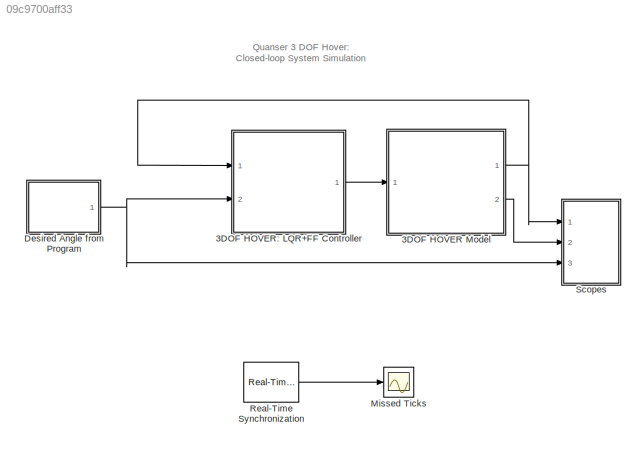
MODEL slx_09c9700aff33
KIND model
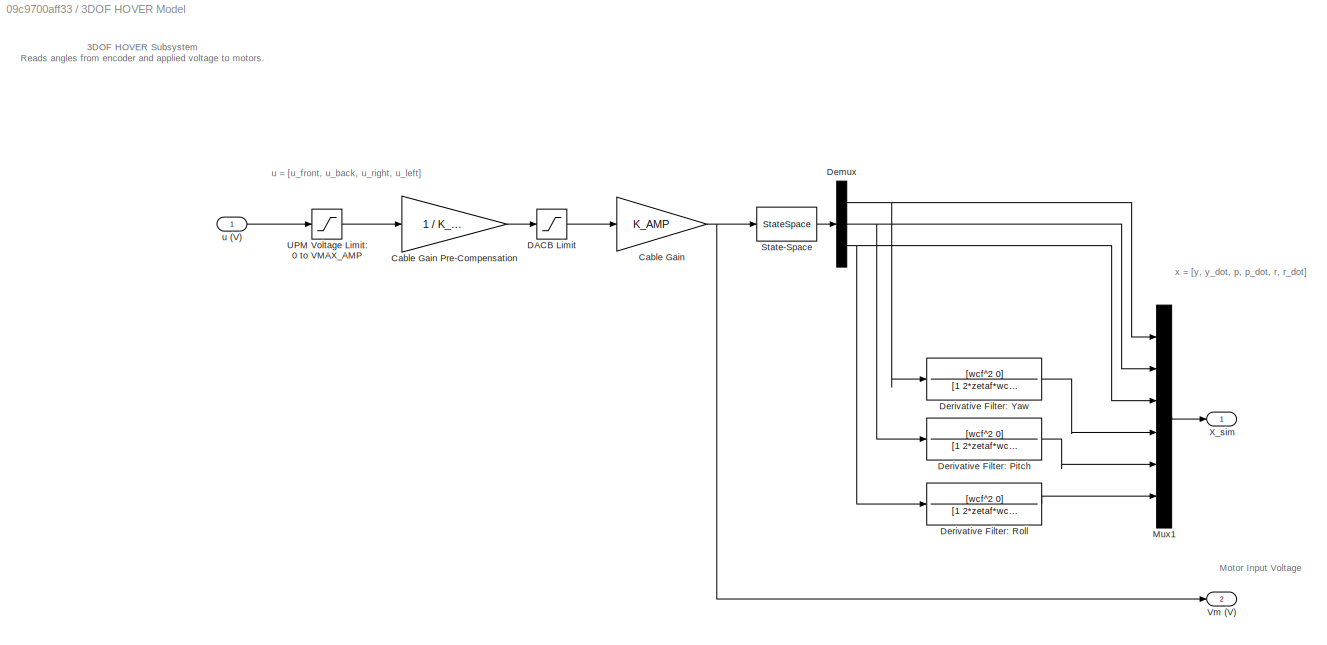
BLOCK [SubSystem] 3DOF HOVER Model
  FunctionWithSeparateData = off
  MaskHideContents = off
  MinAlgLoopOccurrences = off
  Opaque = off
  Ports = [1, 2]
  PropExecContextOutsideSubsystem = off
  RTWSystemCode = Auto
  RequestExecContextInheritance = off
BLOCK [Gain] 3DOF HOVER Model/Cable Gain
  Gain = K_AMP
  Multiplication = Matrix(K*u)
BLOCK [Gain] 3DOF HOVER Model/Cable Gain Pre-Compensation
  Gain = 1 / K_AMP
  Multiplication = Matrix(K*u)
BLOCK [Saturate] 3DOF HOVER Model/DACB Limit
  InputPortMap = u0
  LowerLimit = -VMAX_DAC
  Ports = [1, 1]
  UpperLimit = VMAX_DAC
BLOCK [Demux] 3DOF HOVER Model/Demux
  DisplayOption = bar
  Outputs = 3
  Ports = [1, 3]
BLOCK [TransferFcn] 3DOF HOVER Model/Derivative Filter: Pitch
  Denominator = [1 2*zetaf*wcf wcf^2]
  Numerator = [wcf^2 0]
BLOCK [TransferFcn] 3DOF HOVER Model/Derivative Filter: Roll
  Denominator = [1 2*zetaf*wcf wcf^2]
  Numerator = [wcf^2 0]
BLOCK [TransferFcn] 3DOF HOVER Model/Derivative Filter: Yaw
  Denominator = [1 2*zetaf*wcf wcf^2]
  Numerator = [wcf^2 0]
BLOCK [Mux] 3DOF HOVER Model/Mux1
  DisplayOption = bar
  Inputs = 6
  Ports = [6, 1]
BLOCK [StateSpace] 3DOF HOVER Model/State-Space
  A = A
  B = B
  C = C
  D = D
BLOCK [Saturate] 3DOF HOVER Model/UPM Voltage Limit: 0 to VMAX_AMP
  InputPortMap = u0
  LowerLimit = 0
  Ports = [1, 1]
  UpperLimit = VMAX_AMP
BLOCK [Outport] 3DOF HOVER Model/Vm (V)
  IconDisplay = Port number
  Port = 2
BLOCK [Outport] 3DOF HOVER Model/X_sim
  IconDisplay = Port number
BLOCK [Inport] 3DOF HOVER Model/u (V)
  IconDisplay = Port number
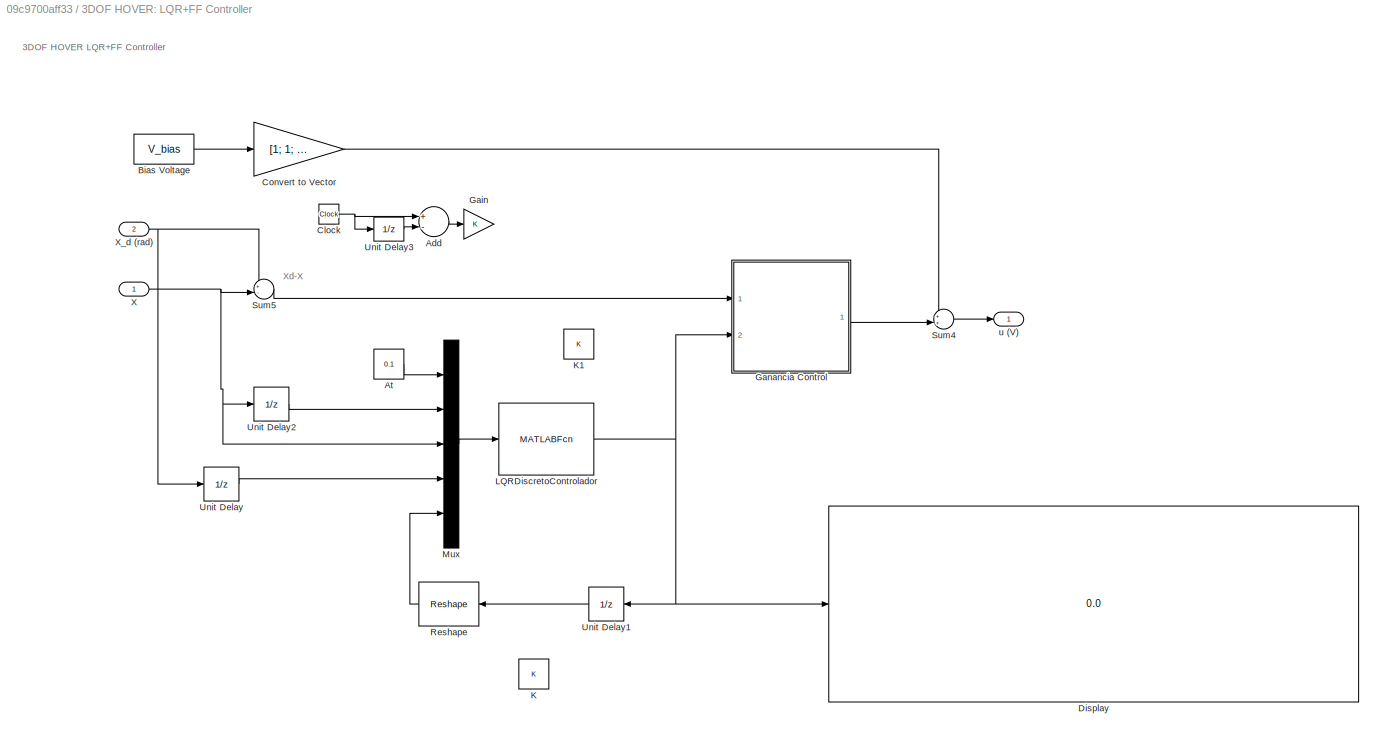
BLOCK [SubSystem] 3DOF HOVER: LQR+FF Controller
  FunctionWithSeparateData = off
  MaskHideContents = off
  MinAlgLoopOccurrences = off
  Opaque = off
  Ports = [2, 1]
  PropExecContextOutsideSubsystem = off
  RTWSystemCode = Auto
  RequestExecContextInheritance = off
BLOCK [Sum] 3DOF HOVER: LQR+FF Controller/Add
  InputSameDT = off
  Inputs = +-
  OutDataTypeStr = Inherit: Inherit via internal rule
  Ports = [2, 1]
  SaturateOnIntegerOverflow = off
BLOCK [Constant] 3DOF HOVER: LQR+FF Controller/At
  Value = 0.1
BLOCK [Constant] 3DOF HOVER: LQR+FF Controller/Bias Voltage
  Value = V_bias
BLOCK [Clock] 3DOF HOVER: LQR+FF Controller/Clock
BLOCK [Gain] 3DOF HOVER: LQR+FF Controller/Convert to Vector
  Gain = [1; 1; 1; 1]*0
  Multiplication = Matrix(K*u)
  OutDataTypeStr = Inherit: Inherit via internal rule
  ParamDataTypeStr = Inherit: Inherit via internal rule
  SaturateOnIntegerOverflow = off
BLOCK [Display] 3DOF HOVER: LQR+FF Controller/Display
  Decimation = 1
  Lockdown = off
  Ports = [1]
BLOCK [Gain] 3DOF HOVER: LQR+FF Controller/Gain
  OutDataTypeStr = Inherit: Inherit via internal rule
  ParamDataTypeStr = Inherit: Inherit via internal rule
  SaturateOnIntegerOverflow = off
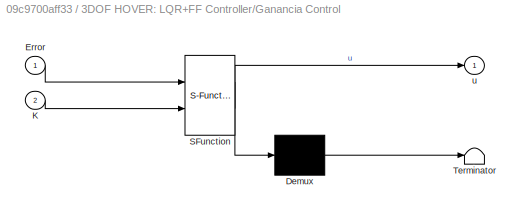
BLOCK [SubSystem] 3DOF HOVER: LQR+FF Controller/Ganancia Control
  ErrorFcn = Stateflow.Translate.translate
  FunctionWithSeparateData = off
  MaskHideContents = off
  MinAlgLoopOccurrences = off
  Opaque = off
  PermitHierarchicalResolution = ExplicitOnly
  Ports = [2, 1]
  PropExecContextOutsideSubsystem = off
  RTWSystemCode = Auto
  RequestExecContextInheritance = off
  SFBlockType = MATLAB Function
  TreatAsAtomicUnit = on
BLOCK [Demux] 3DOF HOVER: LQR+FF Controller/Ganancia Control/ Demux 
  Outputs = 1
  Ports = [1, 1]
BLOCK [S-Function] 3DOF HOVER: LQR+FF Controller/Ganancia Control/ SFunction 
  EnableBusSupport = on
  FunctionName = sf_sfun
  PortCounts = [2 2]
  Ports = [2, 2]
  Tag = Stateflow S-Function s_hover_lqrV2 1
BLOCK [Terminator] 3DOF HOVER: LQR+FF Controller/Ganancia Control/ Terminator 
BLOCK [Inport] 3DOF HOVER: LQR+FF Controller/Ganancia Control/Error
  IconDisplay = Port number
BLOCK [Inport] 3DOF HOVER: LQR+FF Controller/Ganancia Control/K
  IconDisplay = Port number
  Port = 2
BLOCK [Outport] 3DOF HOVER: LQR+FF Controller/Ganancia Control/u
  IconDisplay = Port number
BLOCK [Constant] 3DOF HOVER: LQR+FF Controller/K
  Value = K
BLOCK [Constant] 3DOF HOVER: LQR+FF Controller/K1
  Value = K
BLOCK [MATLABFcn] 3DOF HOVER: LQR+FF Controller/LQRDiscretoControlador
  MATLABFcn = LQRDiscretoFUNC( u(1),u(2:7),u(8:13),u(14:19),u(20:43) )
  Output1D = off
  OutputDimensions = [4,6]
  Ports = [1, 1]
BLOCK [Mux] 3DOF HOVER: LQR+FF Controller/Mux
  DisplayOption = bar
  Inputs = 5
  Ports = [5, 1]
BLOCK [Reshape] 3DOF HOVER: LQR+FF Controller/Reshape
  OutputDimensionality = Customize
  OutputDimensions = [4*6,1]
  Ports = [1, 1]
BLOCK [Sum] 3DOF HOVER: LQR+FF Controller/Sum4
  IconShape = round
  InputSameDT = off
  Inputs = ++|
  OutDataTypeStr = Inherit: Inherit via internal rule
  Ports = [2, 1]
  SaturateOnIntegerOverflow = off
BLOCK [Sum] 3DOF HOVER: LQR+FF Controller/Sum5
  IconShape = round
  InputSameDT = off
  Inputs = +-|
  OutDataTypeStr = Inherit: Inherit via internal rule
  Ports = [2, 1]
  SaturateOnIntegerOverflow = off
BLOCK [UnitDelay] 3DOF HOVER: LQR+FF Controller/Unit Delay
  InitialCondition = [0;0;0;0;0;0]
  InputProcessing = Elements as channels (sample based)
  SampleTime = -1
BLOCK [UnitDelay] 3DOF HOVER: LQR+FF Controller/Unit Delay1
  InitialCondition = K
  InputProcessing = Elements as channels (sample based)
  SampleTime = -1
BLOCK [UnitDelay] 3DOF HOVER: LQR+FF Controller/Unit Delay2
  InitialCondition = [0;0;0;0;0;0]
  InputProcessing = Elements as channels (sample based)
  SampleTime = -1
BLOCK [UnitDelay] 3DOF HOVER: LQR+FF Controller/Unit Delay3
  InputProcessing = Elements as channels (sample based)
  SampleTime = -1
BLOCK [Inport] 3DOF HOVER: LQR+FF Controller/X
  IconDisplay = Port number
BLOCK [Inport] 3DOF HOVER: LQR+FF Controller/X_d (rad)
  IconDisplay = Port number
  Port = 2
BLOCK [Outport] 3DOF HOVER: LQR+FF Controller/u (V)
  IconDisplay = Port number
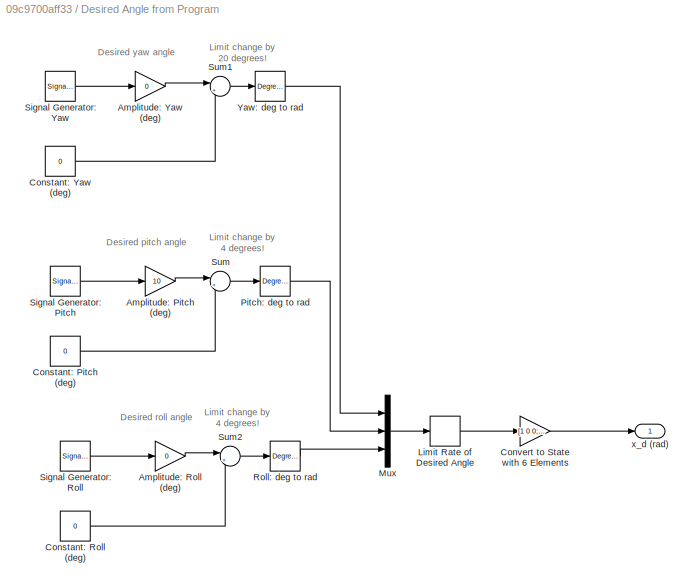
BLOCK [SubSystem] Desired Angle from Program
  FunctionWithSeparateData = off
  MaskHideContents = off
  MinAlgLoopOccurrences = off
  Opaque = off
  Ports = [0, 1]
  PropExecContextOutsideSubsystem = off
  RTWSystemCode = Auto
  RequestExecContextInheritance = off
BLOCK [Gain] Desired Angle from Program/Amplitude: Pitch (deg)
  Gain = 10
  OutDataTypeStr = Inherit: Inherit via internal rule
  ParamDataTypeStr = Inherit: Inherit via internal rule
  SaturateOnIntegerOverflow = off
BLOCK [Gain] Desired Angle from Program/Amplitude: Roll (deg)
  Gain = 0
  OutDataTypeStr = Inherit: Inherit via internal rule
  ParamDataTypeStr = Inherit: Inherit via internal rule
  SaturateOnIntegerOverflow = off
BLOCK [Gain] Desired Angle from Program/Amplitude: Yaw (deg)
  Gain = 0
  OutDataTypeStr = Inherit: Inherit via internal rule
  ParamDataTypeStr = Inherit: Inherit via internal rule
  SaturateOnIntegerOverflow = off
BLOCK [Constant] Desired Angle from Program/Constant: Pitch (deg)
  Value = 0
BLOCK [Constant] Desired Angle from Program/Constant: Roll (deg)
  Value = 0
BLOCK [Constant] Desired Angle from Program/Constant: Yaw (deg)
  Value = 0
BLOCK [Gain] Desired Angle from Program/Convert to State with 6 Elements
  Gain = [1 0 0; 0 1 0; 0 0 1; 0 0 0; 0 0 0; 0 0 0];
  Multiplication = Matrix(K*u)
  OutDataTypeStr = Inherit: Inherit via internal rule
  ParamDataTypeStr = Inherit: Inherit via internal rule
  SaturateOnIntegerOverflow = off
BLOCK [RateLimiter] Desired Angle from Program/Limit Rate of Desired Angle
  FallingSlewLimit = -CMD_RATE_LIMIT
  RisingSlewLimit = CMD_RATE_LIMIT
BLOCK [Mux] Desired Angle from Program/Mux
  DisplayOption = bar
  Inputs = 3
  Ports = [3, 1]
BLOCK [Reference] Desired Angle from Program/Pitch: deg to rad  REF=simulink_extras/Transformations/Degrees to
Radians
  Ports = [1, 1]
  SourceBlock = simulink_extras/Transformations/Degrees to\nRadians
  SourceType = DegreesToRadians
BLOCK [Reference] Desired Angle from Program/Roll: deg to rad  REF=simulink_extras/Transformations/Degrees to
Radians
  Ports = [1, 1]
  SourceBlock = simulink_extras/Transformations/Degrees to\nRadians
  SourceType = DegreesToRadians
BLOCK [SignalGenerator] Desired Angle from Program/Signal Generator: Pitch
  Frequency = 0.1
  Ports = [0, 1]
  WaveForm = square
BLOCK [SignalGenerator] Desired Angle from Program/Signal Generator: Roll
  Frequency = 0.08
  Ports = [0, 1]
  WaveForm = square
BLOCK [SignalGenerator] Desired Angle from Program/Signal Generator: Yaw
  Frequency = 0.4
  Ports = [0, 1]
  WaveForm = square
BLOCK [Sum] Desired Angle from Program/Sum
  IconShape = round
  InputSameDT = off
  Inputs = |++
  OutDataTypeStr = Inherit: Inherit via internal rule
  Ports = [2, 1]
  SaturateOnIntegerOverflow = off
BLOCK [Sum] Desired Angle from Program/Sum1
  IconShape = round
  InputSameDT = off
  Inputs = |++
  OutDataTypeStr = Inherit: Inherit via internal rule
  Ports = [2, 1]
  SaturateOnIntegerOverflow = off
BLOCK [Sum] Desired Angle from Program/Sum2
  IconShape = round
  InputSameDT = off
  Inputs = |++
  OutDataTypeStr = Inherit: Inherit via internal rule
  Ports = [2, 1]
  SaturateOnIntegerOverflow = off
BLOCK [Reference] Desired Angle from Program/Yaw: deg to rad  REF=simulink_extras/Transformations/Degrees to
Radians
  Ports = [1, 1]
  SourceBlock = simulink_extras/Transformations/Degrees to\nRadians
  SourceType = DegreesToRadians
BLOCK [Outport] Desired Angle from Program/x_d (rad)
  IconDisplay = Port number
BLOCK [Scope] Missed Ticks
  Floating = off
  LimitDataPoints = off
  NumInputPorts = 1
  Ports = [1]
  SampleTime = 0
  SaveName = ScopeData3
  ShowLegends = off
  TickLabels = on
  TimeRange = 20
  YMax = 30
  YMin = 0
BLOCK [Reference] Real-Time Synchronization  REF=rtwinlib/Real-Time
Synchronization
  MaxMissedTicks = 100000000000000000000000
  Ports = [0, 1]
  SampleTime = 0.001
  ShowMissedTicks = on
  SourceBlock = rtwinlib/Real-Time\nSynchronization
  SourceType = RTWin Real-Time Synchronization
  YieldWhenWaiting = on
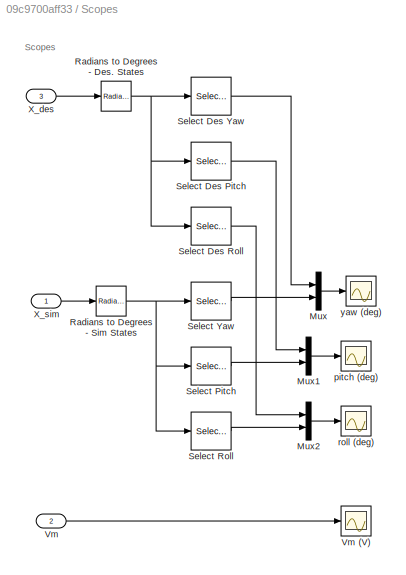
BLOCK [SubSystem] Scopes
  FunctionWithSeparateData = off
  MaskHideContents = off
  MinAlgLoopOccurrences = off
  Opaque = off
  Ports = [3]
  PropExecContextOutsideSubsystem = off
  RTWSystemCode = Auto
  RequestExecContextInheritance = off
BLOCK [Mux] Scopes/Mux
  DisplayOption = bar
  Inputs = 2
  Ports = [2, 1]
BLOCK [Mux] Scopes/Mux1
  DisplayOption = bar
  Inputs = 2
  Ports = [2, 1]
BLOCK [Mux] Scopes/Mux2
  DisplayOption = bar
  Inputs = 2
  Ports = [2, 1]
BLOCK [Reference] Scopes/Radians to Degrees - Des. States  REF=simulink_extras/Transformations/Radians
to Degrees
  Ports = [1, 1]
  SourceBlock = simulink_extras/Transformations/Radians\nto Degrees
  SourceType = RadiansToDegrees
BLOCK [Reference] Scopes/Radians to Degrees - Sim States  REF=simulink_extras/Transformations/Radians
to Degrees
  Ports = [1, 1]
  SourceBlock = simulink_extras/Transformations/Radians\nto Degrees
  SourceType = RadiansToDegrees
BLOCK [Selector] Scopes/Select Des Pitch
  IndexOptions = Index vector (dialog)
  Indices = 2
  InputPortWidth = 6
  OutputSizes = 1
  Ports = [1, 1]
BLOCK [Selector] Scopes/Select Des Roll
  IndexOptions = Index vector (dialog)
  Indices = 3
  InputPortWidth = 6
  OutputSizes = 1
  Ports = [1, 1]
BLOCK [Selector] Scopes/Select Des Yaw
  IndexOptions = Index vector (dialog)
  Indices = 1
  InputPortWidth = 6
  OutputSizes = 1
  Ports = [1, 1]
BLOCK [Selector] Scopes/Select Pitch
  IndexOptions = Index vector (dialog)
  Indices = 2
  InputPortWidth = 6
  OutputSizes = 1
  Ports = [1, 1]
BLOCK [Selector] Scopes/Select Roll
  IndexOptions = Index vector (dialog)
  Indices = 3
  InputPortWidth = 6
  OutputSizes = 1
  Ports = [1, 1]
BLOCK [Selector] Scopes/Select Yaw
  IndexOptions = Index vector (dialog)
  Indices = 1
  InputPortWidth = 6
  OutputSizes = 1
  Ports = [1, 1]
BLOCK [Inport] Scopes/Vm
  IconDisplay = Port number
  Port = 2
BLOCK [Scope] Scopes/Vm (V)
  Floating = off
  LimitDataPoints = off
  NumInputPorts = 1
  Ports = [1]
  SampleTime = 0
  SaveName = ScopeData4
  ShowLegends = off
  TickLabels = on
  TimeRange = 20
  YMax = 15
  YMin = -15
BLOCK [Inport] Scopes/X_des
  IconDisplay = Port number
  Port = 3
BLOCK [Inport] Scopes/X_sim
  IconDisplay = Port number
BLOCK [Scope] Scopes/pitch (deg)
  Floating = off
  LimitDataPoints = off
  NumInputPorts = 1
  Ports = [1]
  SampleTime = 0
  SaveName = ScopeData1
  ShowLegends = off
  TickLabels = on
  TimeRange = 20
  YMax = 11
  YMin = -11
BLOCK [Scope] Scopes/roll  (deg)
  Floating = off
  LimitDataPoints = off
  NumInputPorts = 1
  Ports = [1]
  SampleTime = 0
  SaveName = ScopeData2
  ShowLegends = off
  TickLabels = on
  TimeRange = 20
BLOCK [Scope] Scopes/yaw (deg)
  Floating = off
  LimitDataPoints = off
  NumInputPorts = 1
  Ports = [1]
  SampleTime = 0
  ShowLegends = off
  TickLabels = on
  TimeRange = 20
  YMax = 0.1
  YMin = -0.9
ANNOTATION (root): Quanser 3 DOF Hover: Closed-loop System Simulation
ANNOTATION 3DOF HOVER Model: 3DOF HOVER Subsystem Reads angles from encoder and applied voltage to motors.
ANNOTATION 3DOF HOVER Model: Motor Input Voltage
ANNOTATION 3DOF HOVER Model: u = [u_front, u_back, u_right, u_left]
ANNOTATION 3DOF HOVER Model: x = [y, y_dot, p, p_dot, r, r_dot]
ANNOTATION 3DOF HOVER: LQR+FF Controller: 3DOF HOVER LQR+FF Controller
ANNOTATION 3DOF HOVER: LQR+FF Controller: Xd-X
ANNOTATION Desired Angle from Program: Desired pitch angle
ANNOTATION Desired Angle from Program: Desired roll angle
ANNOTATION Desired Angle from Program: Desired yaw angle
ANNOTATION Desired Angle from Program: Limit change by 20 degrees!
ANNOTATION Desired Angle from Program: Limit change by 4 degrees!
ANNOTATION Scopes: Scopes
LINE 3DOF HOVER Model/Cable Gain Pre-Compensation:1 -> 3DOF HOVER Model/DACB Limit:1
NET 3DOF HOVER Model/Cable Gain:1 -> 3DOF HOVER Model/State-Space:1, 3DOF HOVER Model/Vm (V):1
LINE 3DOF HOVER Model/DACB Limit:1 -> 3DOF HOVER Model/Cable Gain:1
NET 3DOF HOVER Model/Demux:1 -> 3DOF HOVER Model/Derivative Filter: Yaw:1, 3DOF HOVER Model/Mux1:1
NET 3DOF HOVER Model/Demux:2 -> 3DOF HOVER Model/Derivative Filter: Pitch:1, 3DOF HOVER Model/Mux1:2
NET 3DOF HOVER Model/Demux:3 -> 3DOF HOVER Model/Derivative Filter: Roll:1, 3DOF HOVER Model/Mux1:3
LINE 3DOF HOVER Model/Derivative Filter: Pitch:1 -> 3DOF HOVER Model/Mux1:5
LINE 3DOF HOVER Model/Derivative Filter: Roll:1 -> 3DOF HOVER Model/Mux1:6
LINE 3DOF HOVER Model/Derivative Filter: Yaw:1 -> 3DOF HOVER Model/Mux1:4
LINE 3DOF HOVER Model/Mux1:1 -> 3DOF HOVER Model/X_sim:1
LINE 3DOF HOVER Model/State-Space:1 -> 3DOF HOVER Model/Demux:1
LINE 3DOF HOVER Model/UPM Voltage Limit: 0 to VMAX_AMP:1 -> 3DOF HOVER Model/Cable Gain Pre-Compensation:1
LINE 3DOF HOVER Model/u (V):1 -> 3DOF HOVER Model/UPM Voltage Limit: 0 to VMAX_AMP:1
NET 3DOF HOVER Model:1 -> 3DOF HOVER: LQR+FF Controller:1, Scopes:1
LINE 3DOF HOVER Model:2 -> Scopes:2
LINE 3DOF HOVER: LQR+FF Controller/Add:1 -> 3DOF HOVER: LQR+FF Controller/Gain:1
LINE 3DOF HOVER: LQR+FF Controller/At:1 -> 3DOF HOVER: LQR+FF Controller/Mux:1
LINE 3DOF HOVER: LQR+FF Controller/Bias Voltage:1 -> 3DOF HOVER: LQR+FF Controller/Convert to Vector:1
NET 3DOF HOVER: LQR+FF Controller/Clock:1 -> 3DOF HOVER: LQR+FF Controller/Add:1, 3DOF HOVER: LQR+FF Controller/Unit Delay3:1
LINE 3DOF HOVER: LQR+FF Controller/Convert to Vector:1 -> 3DOF HOVER: LQR+FF Controller/Sum4:1
LINE 3DOF HOVER: LQR+FF Controller/Ganancia Control:1 -> 3DOF HOVER: LQR+FF Controller/Sum4:2
NET 3DOF HOVER: LQR+FF Controller/LQRDiscretoControlador:1 -> 3DOF HOVER: LQR+FF Controller/Display:1, 3DOF HOVER: LQR+FF Controller/Ganancia Control:2, 3DOF HOVER: LQR+FF Controller/Unit Delay1:1
LINE 3DOF HOVER: LQR+FF Controller/Mux:1 -> 3DOF HOVER: LQR+FF Controller/LQRDiscretoControlador:1
LINE 3DOF HOVER: LQR+FF Controller/Reshape:1 -> 3DOF HOVER: LQR+FF Controller/Mux:5
LINE 3DOF HOVER: LQR+FF Controller/Sum4:1 -> 3DOF HOVER: LQR+FF Controller/u (V):1
LINE 3DOF HOVER: LQR+FF Controller/Sum5:1 -> 3DOF HOVER: LQR+FF Controller/Ganancia Control:1
LINE 3DOF HOVER: LQR+FF Controller/Unit Delay1:1 -> 3DOF HOVER: LQR+FF Controller/Reshape:1
LINE 3DOF HOVER: LQR+FF Controller/Unit Delay2:1 -> 3DOF HOVER: LQR+FF Controller/Mux:2
LINE 3DOF HOVER: LQR+FF Controller/Unit Delay3:1 -> 3DOF HOVER: LQR+FF Controller/Add:2
LINE 3DOF HOVER: LQR+FF Controller/Unit Delay:1 -> 3DOF HOVER: LQR+FF Controller/Mux:4
NET 3DOF HOVER: LQR+FF Controller/X:1 -> 3DOF HOVER: LQR+FF Controller/Mux:3, 3DOF HOVER: LQR+FF Controller/Sum5:2, 3DOF HOVER: LQR+FF Controller/Unit Delay2:1
NET 3DOF HOVER: LQR+FF Controller/X_d (rad):1 -> 3DOF HOVER: LQR+FF Controller/Sum5:1, 3DOF HOVER: LQR+FF Controller/Unit Delay:1
LINE 3DOF HOVER: LQR+FF Controller:1 -> 3DOF HOVER Model:1
LINE Desired Angle from Program/Amplitude: Pitch (deg):1 -> Desired Angle from Program/Sum:1
LINE Desired Angle from Program/Amplitude: Roll (deg):1 -> Desired Angle from Program/Sum2:1
LINE Desired Angle from Program/Amplitude: Yaw (deg):1 -> Desired Angle from Program/Sum1:1
LINE Desired Angle from Program/Constant: Pitch (deg):1 -> Desired Angle from Program/Sum:2
LINE Desired Angle from Program/Constant: Roll (deg):1 -> Desired Angle from Program/Sum2:2
LINE Desired Angle from Program/Constant: Yaw (deg):1 -> Desired Angle from Program/Sum1:2
LINE Desired Angle from Program/Convert to State with 6 Elements:1 -> Desired Angle from Program/x_d (rad):1
LINE Desired Angle from Program/Limit Rate of Desired Angle:1 -> Desired Angle from Program/Convert to State with 6 Elements:1
LINE Desired Angle from Program/Mux:1 -> Desired Angle from Program/Limit Rate of Desired Angle:1
LINE Desired Angle from Program/Pitch: deg to rad:1 -> Desired Angle from Program/Mux:2
LINE Desired Angle from Program/Roll: deg to rad:1 -> Desired Angle from Program/Mux:3
LINE Desired Angle from Program/Signal Generator: Pitch:1 -> Desired Angle from Program/Amplitude: Pitch (deg):1
LINE Desired Angle from Program/Signal Generator: Roll:1 -> Desired Angle from Program/Amplitude: Roll (deg):1
LINE Desired Angle from Program/Signal Generator: Yaw:1 -> Desired Angle from Program/Amplitude: Yaw (deg):1
LINE Desired Angle from Program/Sum1:1 -> Desired Angle from Program/Yaw: deg to rad:1
LINE Desired Angle from Program/Sum2:1 -> Desired Angle from Program/Roll: deg to rad:1
LINE Desired Angle from Program/Sum:1 -> Desired Angle from Program/Pitch: deg to rad:1
LINE Desired Angle from Program/Yaw: deg to rad:1 -> Desired Angle from Program/Mux:1
NET Desired Angle from Program:1 -> 3DOF HOVER: LQR+FF Controller:2, Scopes:3
LINE Real-Time Synchronization:1 -> Missed Ticks:1
LINE Scopes/Mux1:1 -> Scopes/pitch (deg):1
LINE Scopes/Mux2:1 -> Scopes/roll  (deg):1
LINE Scopes/Mux:1 -> Scopes/yaw (deg):1
NET Scopes/Radians to Degrees - Des. States:1 -> Scopes/Select Des Pitch:1, Scopes/Select Des Roll:1, Scopes/Select Des Yaw:1
NET Scopes/Radians to Degrees - Sim States:1 -> Scopes/Select Pitch:1, Scopes/Select Roll:1, Scopes/Select Yaw:1
LINE Scopes/Select Des Pitch:1 -> Scopes/Mux1:1
LINE Scopes/Select Des Roll:1 -> Scopes/Mux2:1
LINE Scopes/Select Des Yaw:1 -> Scopes/Mux:1
LINE Scopes/Select Pitch:1 -> Scopes/Mux1:2
LINE Scopes/Select Roll:1 -> Scopes/Mux2:2
LINE Scopes/Select Yaw:1 -> Scopes/Mux:2
LINE Scopes/Vm:1 -> Scopes/Vm (V):1
LINE Scopes/X_des:1 -> Scopes/Radians to Degrees - Des. States:1
LINE Scopes/X_sim:1 -> Scopes/Radians to Degrees - Sim States:1
note: NET lines group one-source signal fan-out (src -> all destinations, sorted); 1:1 wires keep LINE
